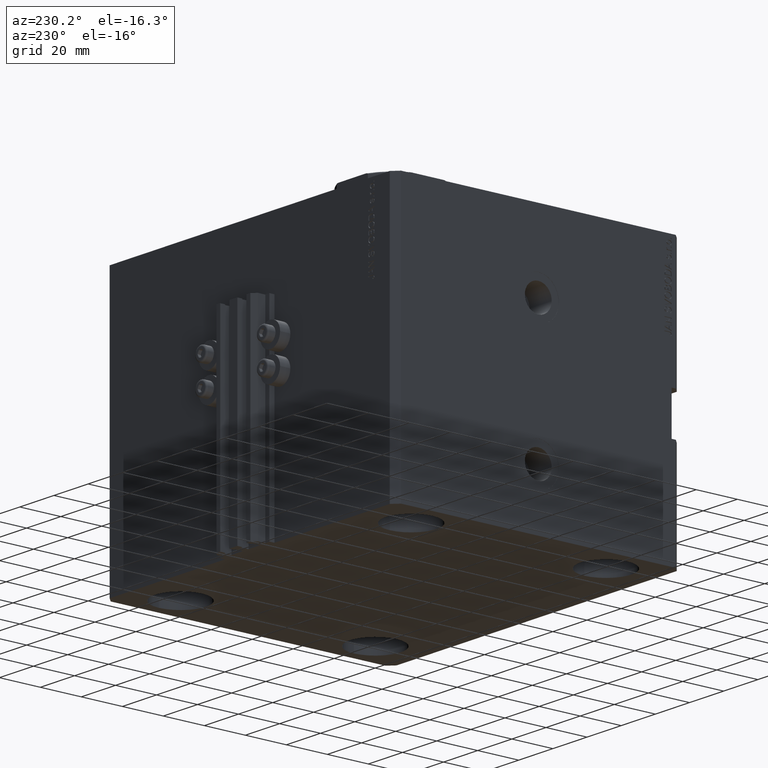
[diagram: clean part render]
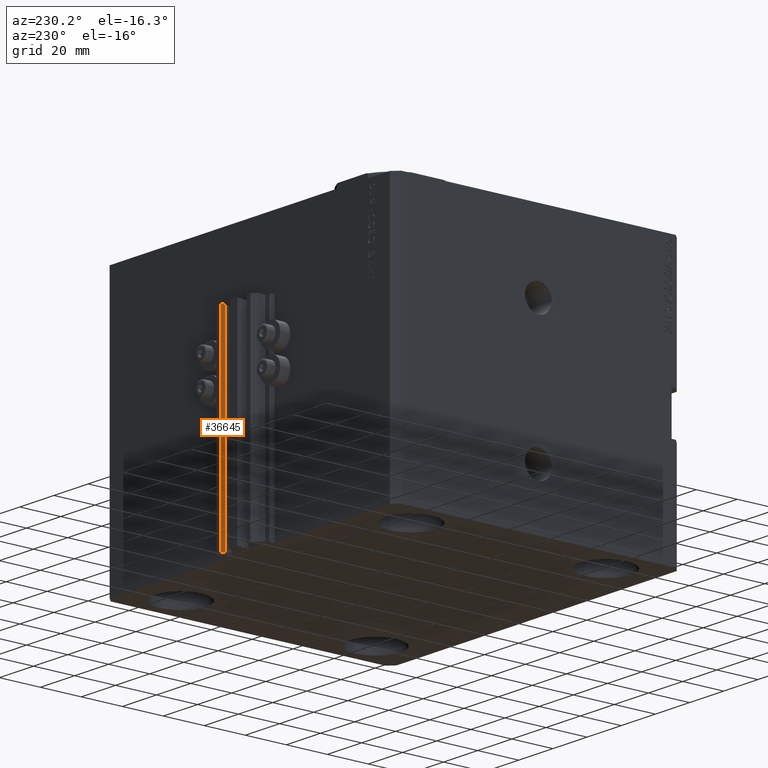
[diagram: same view with one face highlighted and labeled with its STEP entity id]
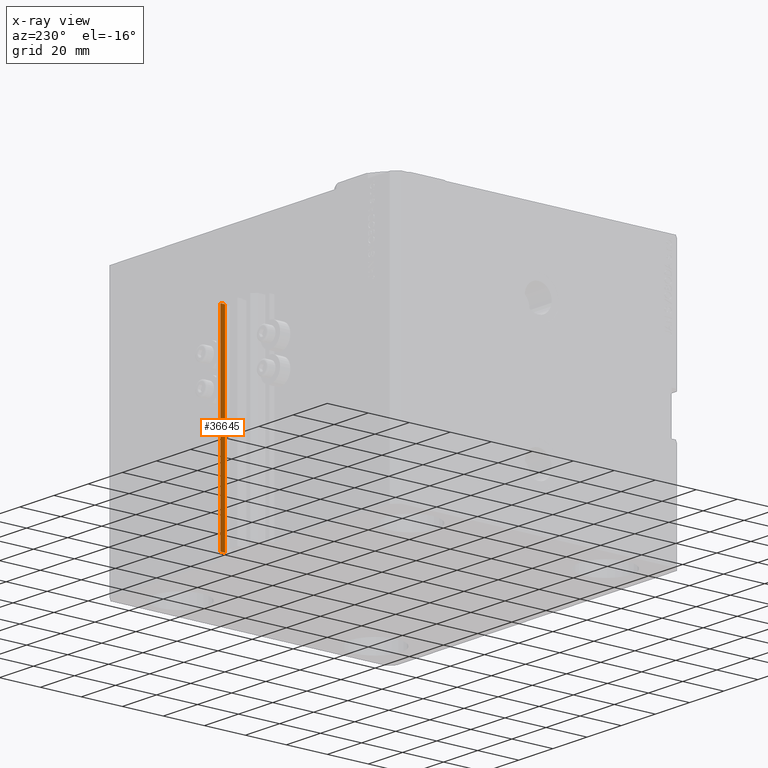
[diagram: x-ray of the same camera — body ghosted, the highlighted face saturated]
A machine part, auxiliary view. The second image highlights one B-rep face of the part: STEP entity #36645.
The next image is the same camera in x-ray: the body ghosted, the highlighted face saturated — about 0% of this face is hidden behind the body in this view.
In plain terms, the highlighted planar face has unit normal (-1, 0, 0).
Its self-contained STEP definition (entity closure, byte-faithful):
#56 = FACE_OUTER_BOUND ( 'NONE', #19151, .T. ) ;
#2367 = ORIENTED_EDGE ( 'NONE', *, *, #26822, .F. ) ;
#3758 = DIRECTION ( 'NONE',  ( -1.000000000000000000, 0.000000000000000000, 0.000000000000000000 ) ) ;
#4713 = CARTESIAN_POINT ( 'NONE',  ( 7.649999999999998579, 75.60000000000002274, -130.0000000000000000 ) ) ;
#6205 = VECTOR ( 'NONE', #35114, 1000.000000000000000 ) ;
#7206 = PLANE ( 'NONE',  #27323 ) ;
#7810 = VERTEX_POINT ( 'NONE', #4713 ) ;
#10461 = ORIENTED_EDGE ( 'NONE', *, *, #13680, .T. ) ;
#11426 = DIRECTION ( 'NONE',  ( 0.000000000000000000, -1.000000000000000000, 0.000000000000000000 ) ) ;
#12349 = VECTOR ( 'NONE', #11426, 1000.000000000000000 ) ;
#12582 = CARTESIAN_POINT ( 'NONE',  ( 7.649999999999998579, 75.60000000000002274, -130.0000000000000000 ) ) ;
#13680 = EDGE_CURVE ( 'NONE', #7810, #32111, #23220, .T. ) ;
#15733 = CARTESIAN_POINT ( 'NONE',  ( 7.649999999999998579, 78.00000000000004263, -130.0000000000000000 ) ) ;
#16195 = VECTOR ( 'NONE', #19682, 1000.000000000000000 ) ;
#19151 = EDGE_LOOP ( 'NONE', ( #34081, #2367, #29338, #10461 ) ) ;
#19682 = DIRECTION ( 'NONE',  ( 0.000000000000000000, -1.000000000000000000, 0.000000000000000000 ) ) ;
#21791 = CARTESIAN_POINT ( 'NONE',  ( 7.649999999999998579, 78.00000000000004263, -33.00000000000000000 ) ) ;
#22796 = CARTESIAN_POINT ( 'NONE',  ( 7.649999999999998579, 75.60000000000002274, -33.00000000000000000 ) ) ;
#23220 = LINE ( 'NONE', #12582, #6205 ) ;
#26822 = EDGE_CURVE ( 'NONE', #44482, #39103, #28330, .T. ) ;
#27323 = AXIS2_PLACEMENT_3D ( 'NONE', #38162, #3758, #45578 ) ;
#28330 = LINE ( 'NONE', #47617, #44475 ) ;
#29338 = ORIENTED_EDGE ( 'NONE', *, *, #31448, .T. ) ;
#30346 = LINE ( 'NONE', #15733, #16195 ) ;
#31448 = EDGE_CURVE ( 'NONE', #44482, #7810, #30346, .T. ) ;
#32111 = VERTEX_POINT ( 'NONE', #22796 ) ;
#34081 = ORIENTED_EDGE ( 'NONE', *, *, #37548, .F. ) ;
#35114 = DIRECTION ( 'NONE',  ( 0.000000000000000000, 0.000000000000000000, 1.000000000000000000 ) ) ;
#36645 = ADVANCED_FACE ( 'NONE', ( #56 ), #7206, .T. ) ;
#37447 = CARTESIAN_POINT ( 'NONE',  ( 7.649999999999998579, 78.00000000000004263, -33.00000000000000000 ) ) ;
#37548 = EDGE_CURVE ( 'NONE', #39103, #32111, #37932, .T. ) ;
#37932 = LINE ( 'NONE', #37447, #12349 ) ;
#38162 = CARTESIAN_POINT ( 'NONE',  ( 7.649999999999998579, 78.00000000000004263, -130.0000000000000000 ) ) ;
#39103 = VERTEX_POINT ( 'NONE', #21791 ) ;
#39868 = CARTESIAN_POINT ( 'NONE',  ( 7.649999999999998579, 78.00000000000004263, -130.0000000000000000 ) ) ;
#43437 = DIRECTION ( 'NONE',  ( 0.000000000000000000, 0.000000000000000000, 1.000000000000000000 ) ) ;
#44475 = VECTOR ( 'NONE', #43437, 1000.000000000000000 ) ;
#44482 = VERTEX_POINT ( 'NONE', #39868 ) ;
#45578 = DIRECTION ( 'NONE',  ( 0.000000000000000000, 0.000000000000000000, 1.000000000000000000 ) ) ;
#47617 = CARTESIAN_POINT ( 'NONE',  ( 7.649999999999998579, 78.00000000000004263, -130.0000000000000000 ) ) ;